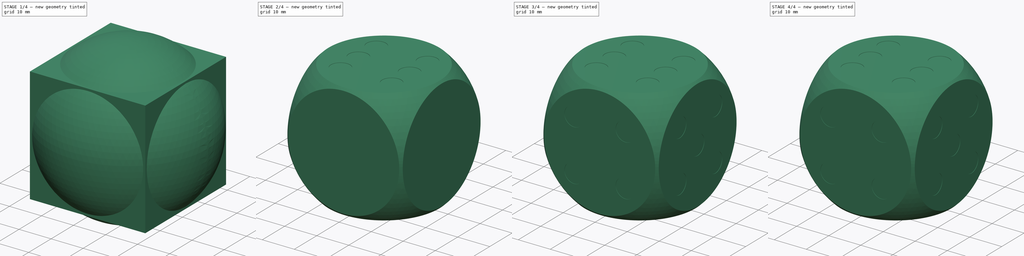
[diagram: build sequence overview — one tinted view per stage of 4, left to right]
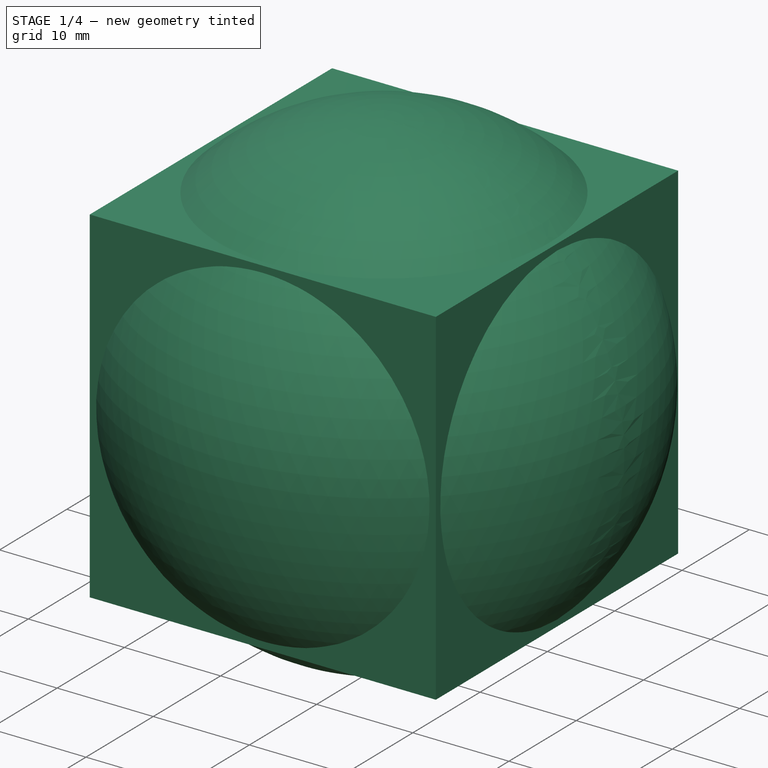
[diagram: stage 1 of 4 — iso view after this stage's code; geometry added in this stage tinted green]
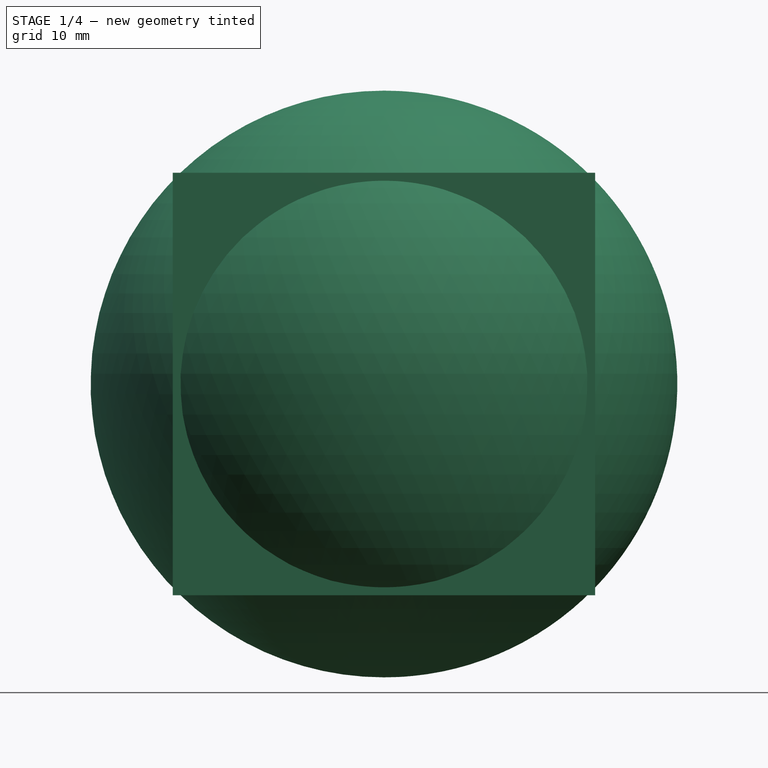
[diagram: stage 1 of 4 — front view after this stage's code; geometry added in this stage tinted green]
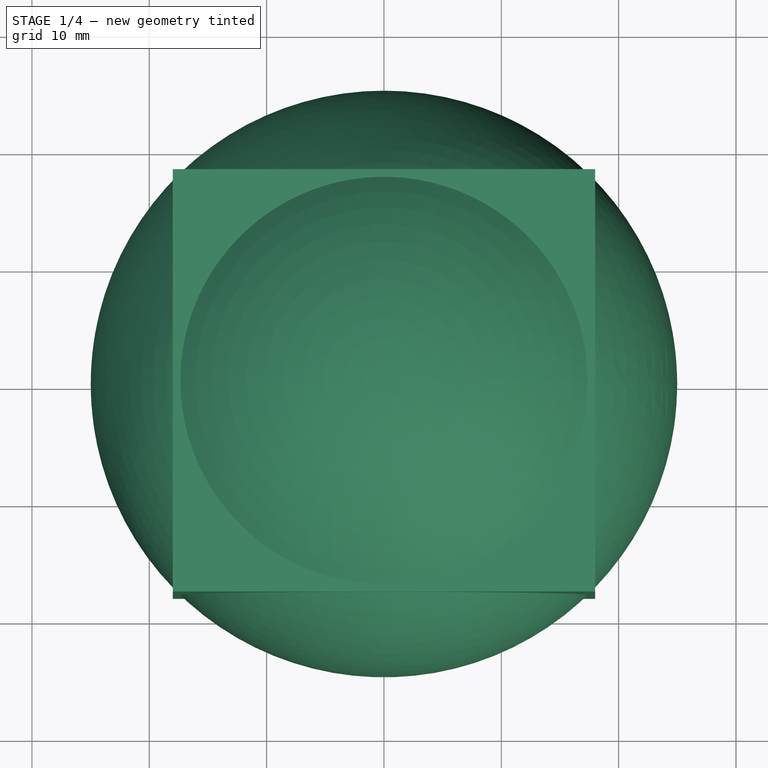
[diagram: stage 1 of 4 — top view after this stage's code; geometry added in this stage tinted green]
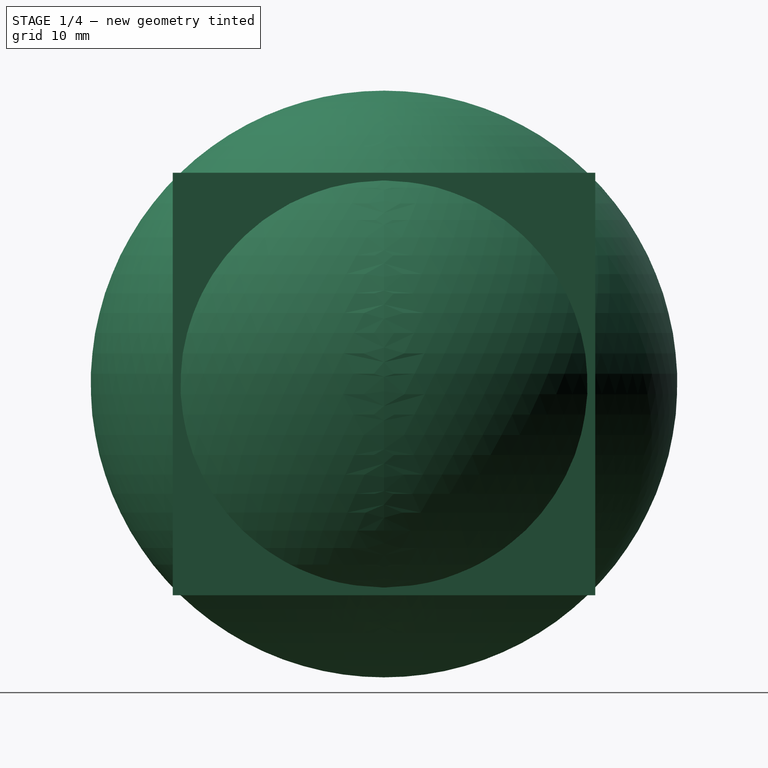
[diagram: stage 1 of 4 — right view after this stage's code; geometry added in this stage tinted green]
FCSTD DOCUMENT  (FreeCAD 0.18.3R)
Label: casino_dice
License: All rights reserved
LicenseURL: http://en.wikipedia.org/wiki/All_rights_reserved
objects: Sketcher::SketchObject×6, PartDesign::Pocket×6, Part::Box×1, Part::Sphere×1, Part::MultiCommon×1, PartDesign::FeatureBase×1, PartDesign::Body×1
note: 23 computed .brp shape members not serialized (recipe doc carries the construction recipe); baked Part::Feature solids carry a one-line shape summary decoded from their .brp

FEATURE [Part::Box] Box  label="Cube"
  AttacherType = Attacher::AttachEngine3D
  Height = 36
  Length = 36
  Placement = pos=(-18,-18,-18) rot=(0,0,1;0rad)
  Width = 36
FEATURE [Part::Sphere] Sphere
  Angle1 = -90
  Angle2 = 90
  Angle3 = 360
  AttacherType = Attacher::AttachEngine3D
  Radius = 25
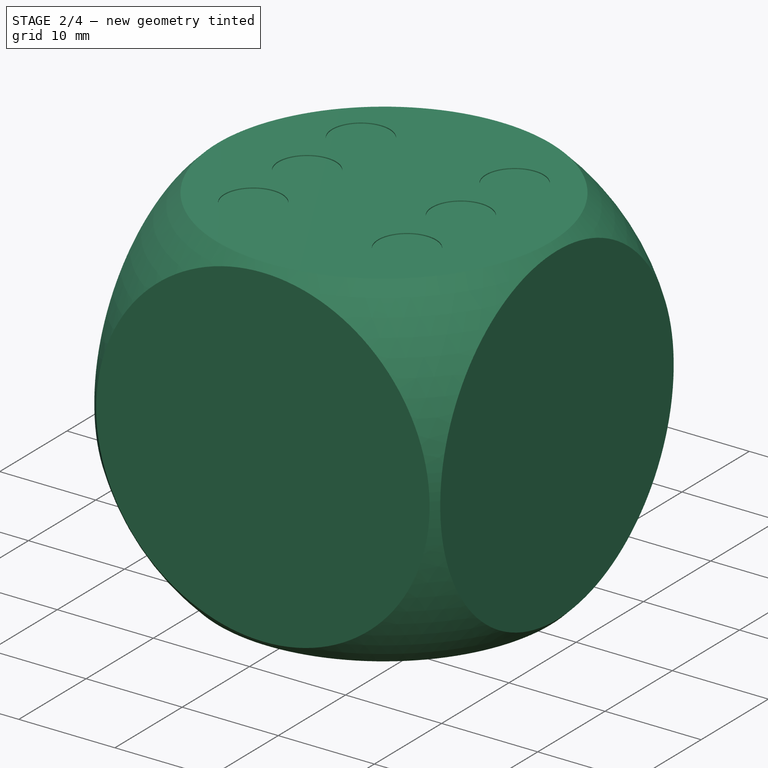
[diagram: stage 2 of 4 — iso view after this stage's code; geometry added in this stage tinted green]
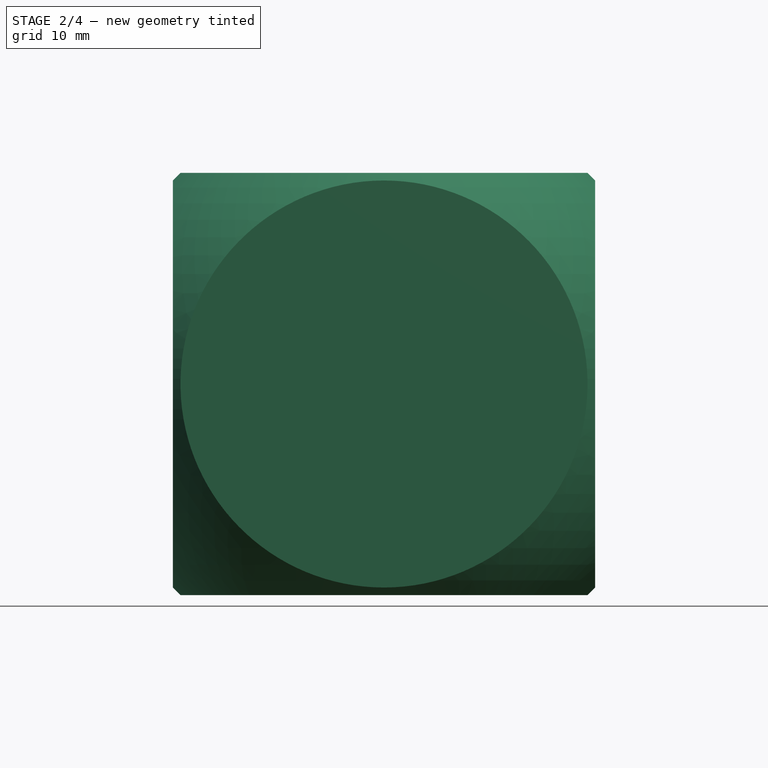
[diagram: stage 2 of 4 — front view after this stage's code; geometry added in this stage tinted green]
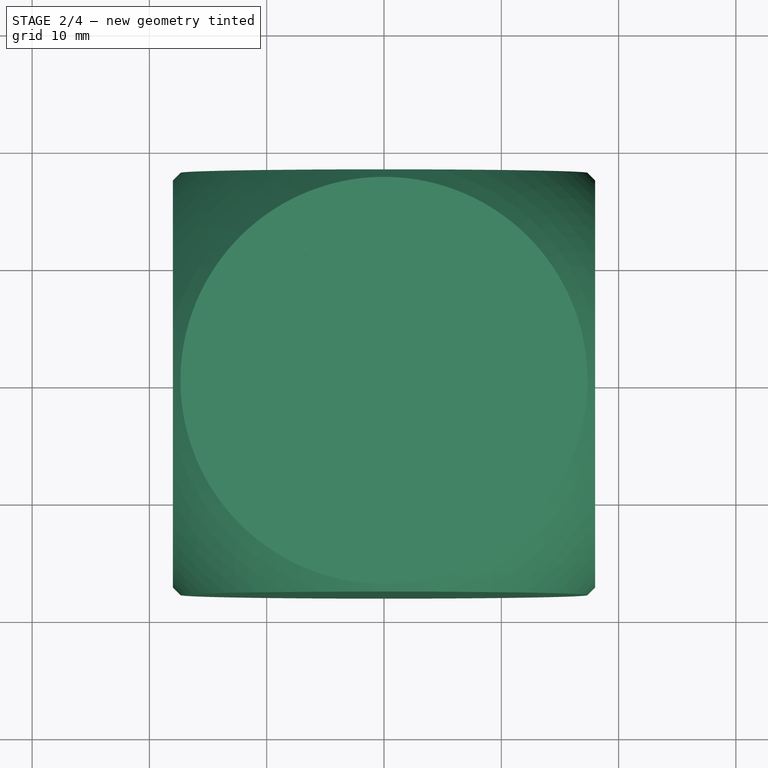
[diagram: stage 2 of 4 — top view after this stage's code; geometry added in this stage tinted green]
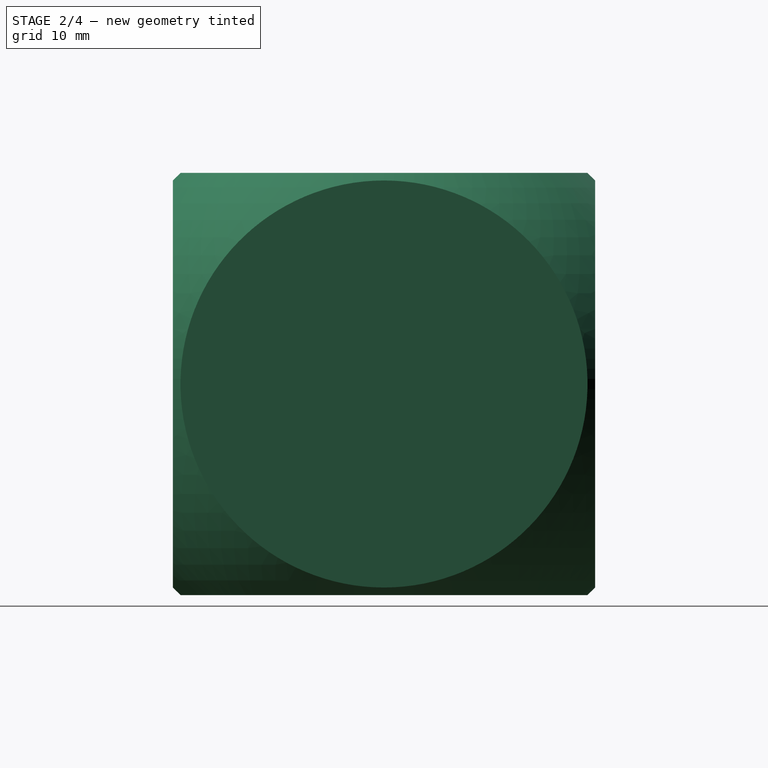
[diagram: stage 2 of 4 — right view after this stage's code; geometry added in this stage tinted green]
FEATURE [Part::MultiCommon] Common
  Shapes = -> [Box,Sphere]
FEATURE [PartDesign::FeatureBase] BaseFeature
  BaseFeature = -> Common
FEATURE [Sketcher::SketchObject] Sketch
  MapMode = 5
  Placement = pos=(0,0,18) rot=(0,0,1;0rad)
  Support = -> [BaseFeature]
  sketch-geometry (10):
    g0: LineSegment [constr] StartX=-8 StartY=8 StartZ=0 EndX=8 EndY=8 EndZ=0
    g1: LineSegment [constr] StartX=8 StartY=8 StartZ=0 EndX=8 EndY=-8 EndZ=0
    g2: LineSegment [constr] StartX=8 StartY=-8 StartZ=0 EndX=-8 EndY=-8 EndZ=0
    g3: LineSegment [constr] StartX=-8 StartY=-8 StartZ=0 EndX=-8 EndY=8 EndZ=0
    g4: Circle CenterX=-8 CenterY=8 CenterZ=0 NormalX=0 NormalY=0 NormalZ=1 AngleXU=0 Radius=3
    g5: Circle CenterX=8 CenterY=8 CenterZ=0 NormalX=0 NormalY=0 NormalZ=1 AngleXU=0 Radius=3
    g6: Circle CenterX=8 CenterY=-8 CenterZ=0 NormalX=0 NormalY=0 NormalZ=1 AngleXU=0 Radius=3
    g7: Circle CenterX=-8 CenterY=-8 CenterZ=0 NormalX=0 NormalY=0 NormalZ=1 AngleXU=0 Radius=3
    g8: Circle CenterX=-8 CenterY=6e-16 CenterZ=0 NormalX=0 NormalY=0 NormalZ=1 AngleXU=0 Radius=3
    g9: Circle CenterX=8 CenterY=-1e-16 CenterZ=0 NormalX=0 NormalY=0 NormalZ=1 AngleXU=0 Radius=3
  constraints (23):
    c: Coincident(g0,g1)
    c: Coincident(g1,g2)
    c: Coincident(g2,g3)
    c: Coincident(g3,g0)
    c: Horizontal(g0)
    c: Horizontal(g2)
    c: Vertical(g1)
    c: Vertical(g3)
    c: Symmetric(g0,g1,g-1)
    c: Equal(g0,g3)
    c: DistanceY(g3,g3) = 16
    c: Coincident(g4,g0)
    c: Coincident(g5,g0)
    c: Coincident(g6,g1)
    c: Coincident(g7,g2)
    c: Symmetric(g3,g3,g8)
    c: Symmetric(g1,g1,g9)
    c: Equal(g4,g8)
    c: Equal(g8,g7)
    c: Equal(g7,g6)
    c: Equal(g6,g9)
    c: Equal(g9,g5)
    c: Radius(g4) = 3
FEATURE [PartDesign::Pocket] Pocket  label="6 dots"
  BaseFeature = -> BaseFeature
  Length = 0.1
  Length2 = 100
  Profile = -> Sketch
  Refine = true
  Type = 0
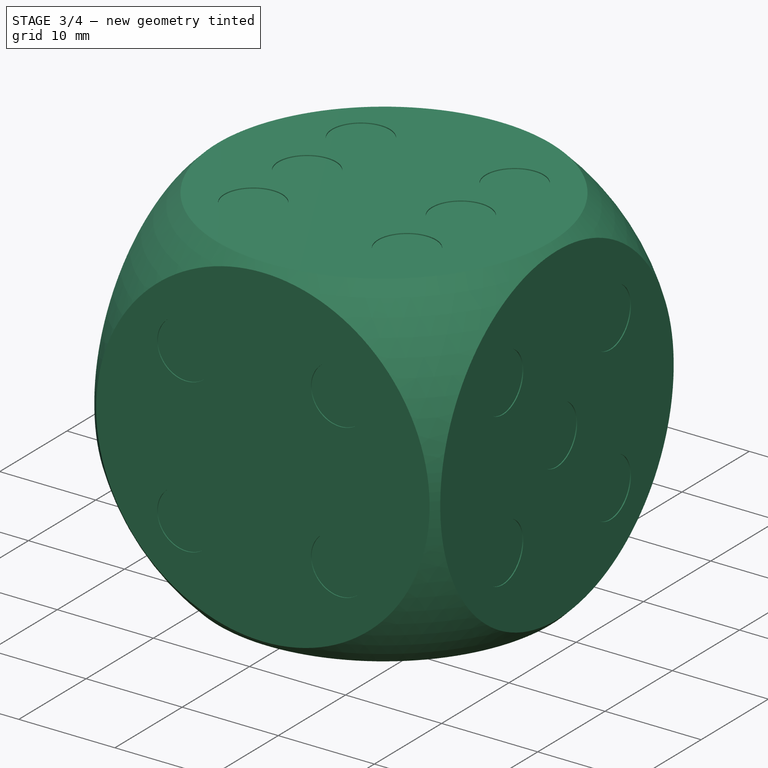
[diagram: stage 3 of 4 — iso view after this stage's code; geometry added in this stage tinted green]
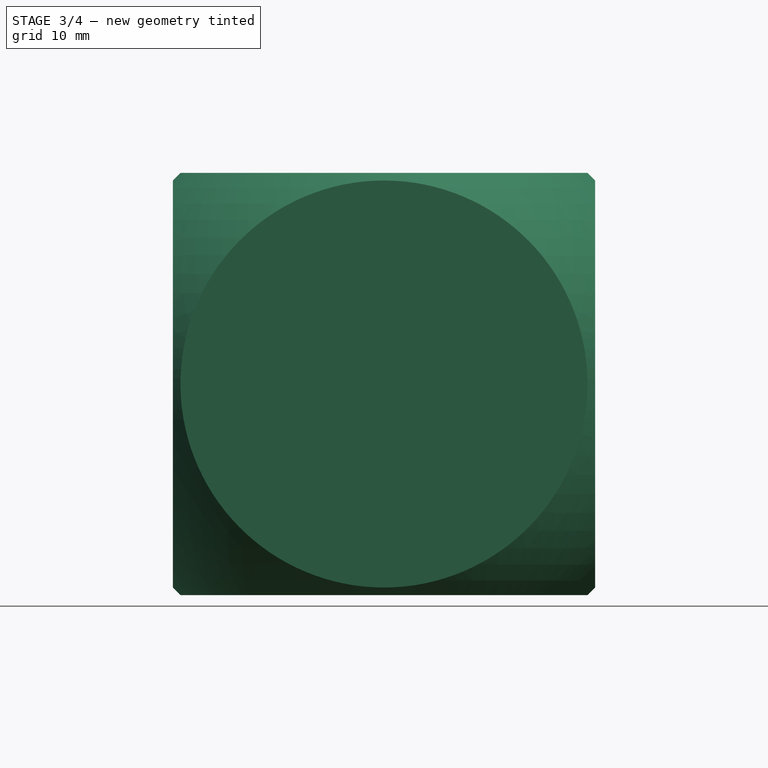
[diagram: stage 3 of 4 — front view after this stage's code; geometry added in this stage tinted green]
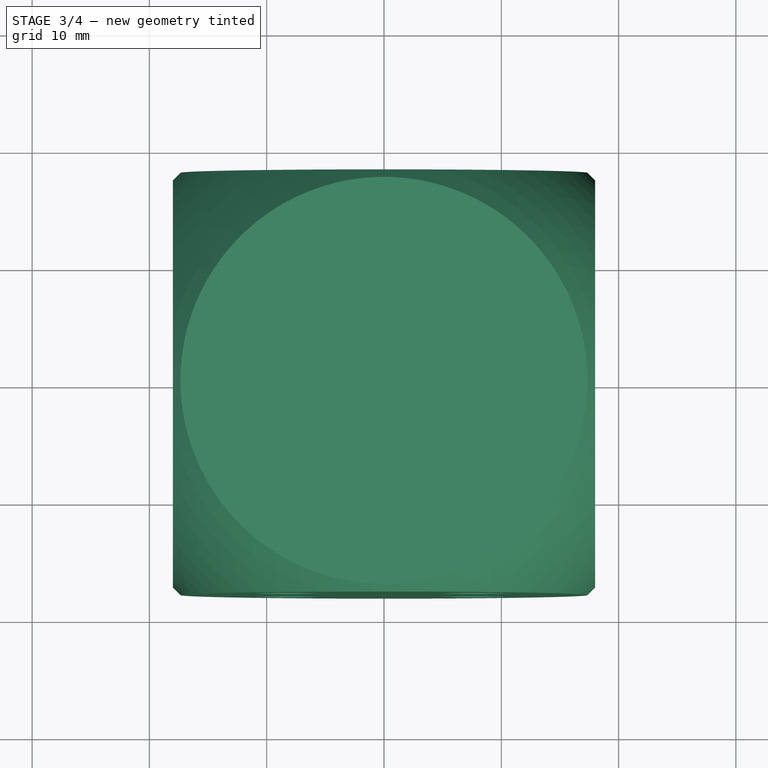
[diagram: stage 3 of 4 — top view after this stage's code; geometry added in this stage tinted green]
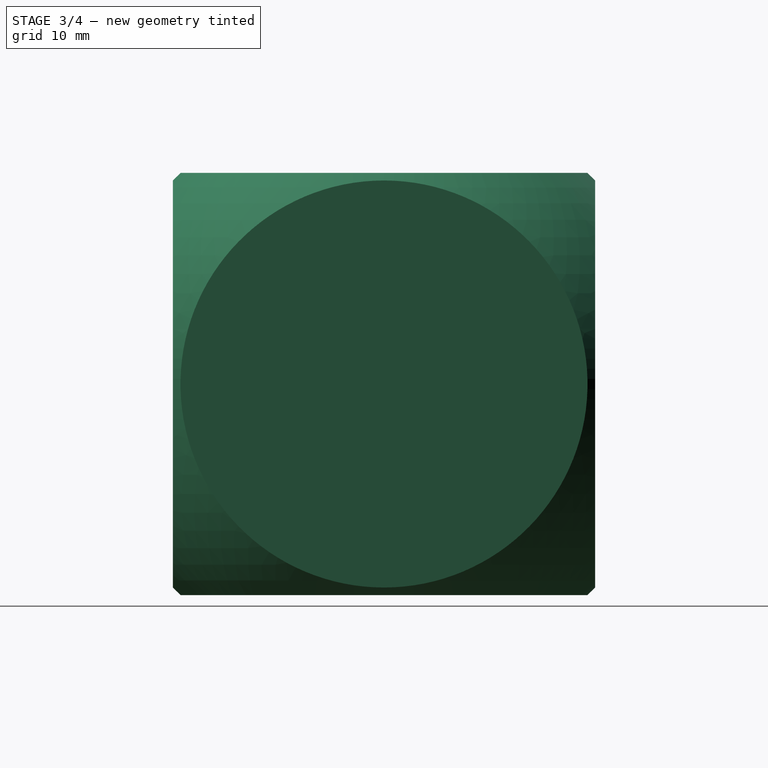
[diagram: stage 3 of 4 — right view after this stage's code; geometry added in this stage tinted green]
FEATURE [Sketcher::SketchObject] Sketch001
  MapMode = 5
  Placement = pos=(18,0,0) rot=(0.57735,0.57735,0.57735;2.0944rad)
  Support = -> [Pocket]
  sketch-geometry (9):
    g0: LineSegment [constr] StartX=-8 StartY=8 StartZ=0 EndX=8 EndY=8 EndZ=0
    g1: LineSegment [constr] StartX=8 StartY=8 StartZ=0 EndX=8 EndY=-8 EndZ=0
    g2: LineSegment [constr] StartX=8 StartY=-8 StartZ=0 EndX=-8 EndY=-8 EndZ=0
    g3: LineSegment [constr] StartX=-8 StartY=-8 StartZ=0 EndX=-8 EndY=8 EndZ=0
    g4: Circle CenterX=-8 CenterY=8 CenterZ=0 NormalX=0 NormalY=0 NormalZ=1 AngleXU=0 Radius=3
    g5: Circle CenterX=8 CenterY=8 CenterZ=0 NormalX=0 NormalY=0 NormalZ=1 AngleXU=0 Radius=3
    g6: Circle CenterX=0 CenterY=0 CenterZ=0 NormalX=0 NormalY=0 NormalZ=1 AngleXU=0 Radius=3
    g7: Circle CenterX=-8 CenterY=-8 CenterZ=0 NormalX=0 NormalY=0 NormalZ=1 AngleXU=0 Radius=3
    g8: Circle CenterX=8 CenterY=-8 CenterZ=0 NormalX=0 NormalY=0 NormalZ=1 AngleXU=0 Radius=3
  constraints (21):
    c: Coincident(g0,g1)
    c: Coincident(g1,g2)
    c: Coincident(g2,g3)
    c: Coincident(g3,g0)
    c: Horizontal(g0)
    c: Horizontal(g2)
    c: Vertical(g1)
    c: Vertical(g3)
    c: Symmetric(g0,g1,g-1)
    c: Equal(g0,g3)
    c: DistanceY(g3,g3) = 16
    c: Coincident(g4,g0)
    c: Coincident(g5,g0)
    c: Coincident(g6,g-1)
    c: Coincident(g7,g2)
    c: Coincident(g8,g1)
    c: Equal(g4,g7)
    c: Equal(g7,g6)
    c: Equal(g6,g8)
    c: Equal(g8,g5)
    c: Radius(g4) = 3
FEATURE [PartDesign::Pocket] Pocket001  label="5 dots"
  BaseFeature = -> Pocket
  Length = 0.1
  Length2 = 100
  Profile = -> Sketch001
  Refine = true
  Type = 0
FEATURE [Sketcher::SketchObject] Sketch002
  MapMode = 5
  Placement = pos=(0,-18,0) rot=(1,0,0;1.5708rad)
  Support = -> [Pocket001]
  sketch-geometry (8):
    g0: LineSegment [constr] StartX=-8 StartY=8 StartZ=0 EndX=8 EndY=8 EndZ=0
    g1: LineSegment [constr] StartX=8 StartY=8 StartZ=0 EndX=8 EndY=-8 EndZ=0
    g2: LineSegment [constr] StartX=8 StartY=-8 StartZ=0 EndX=-8 EndY=-8 EndZ=0
    g3: LineSegment [constr] StartX=-8 StartY=-8 StartZ=0 EndX=-8 EndY=8 EndZ=0
    g4: Circle CenterX=-8 CenterY=8 CenterZ=0 NormalX=0 NormalY=0 NormalZ=1 AngleXU=0 Radius=3
    g5: Circle CenterX=8 CenterY=8 CenterZ=0 NormalX=0 NormalY=0 NormalZ=1 AngleXU=0 Radius=3
    g6: Circle CenterX=-8 CenterY=-8 CenterZ=0 NormalX=0 NormalY=0 NormalZ=1 AngleXU=0 Radius=3
    g7: Circle CenterX=8 CenterY=-8 CenterZ=0 NormalX=0 NormalY=0 NormalZ=1 AngleXU=0 Radius=3
  constraints (19):
    c: Coincident(g0,g1)
    c: Coincident(g1,g2)
    c: Coincident(g2,g3)
    c: Coincident(g3,g0)
    c: Horizontal(g0)
    c: Horizontal(g2)
    c: Vertical(g1)
    c: Vertical(g3)
    c: Symmetric(g0,g1,g-1)
    c: Equal(g0,g3)
    c: DistanceY(g3,g3) = 16
    c: Coincident(g4,g0)
    c: Coincident(g5,g0)
    c: Coincident(g6,g2)
    c: Coincident(g7,g1)
    c: Equal(g4,g6)
    c: Equal(g6,g7)
    c: Equal(g7,g5)
    c: Radius(g4) = 3
FEATURE [PartDesign::Pocket] Pocket002  label="4 dots"
  BaseFeature = -> Pocket001
  Length = 0.1
  Length2 = 100
  Profile = -> Sketch002
  Refine = true
  Type = 0
FEATURE [Sketcher::SketchObject] Sketch003
  MapMode = 5
  Placement = pos=(0,18,0) rot=(0,0.707107,0.707107;3.14159rad)
  Support = -> [Pocket002]
  sketch-geometry (7):
    g0: LineSegment [constr] StartX=-8 StartY=8 StartZ=0 EndX=8 EndY=8 EndZ=0
    g1: LineSegment [constr] StartX=8 StartY=8 StartZ=0 EndX=8 EndY=-8 EndZ=0
    g2: LineSegment [constr] StartX=8 StartY=-8 StartZ=0 EndX=-8 EndY=-8 EndZ=0
    g3: LineSegment [constr] StartX=-8 StartY=-8 StartZ=0 EndX=-8 EndY=8 EndZ=0
    g4: Circle CenterX=8 CenterY=8 CenterZ=0 NormalX=0 NormalY=0 NormalZ=1 AngleXU=0 Radius=3
    g5: Circle CenterX=0 CenterY=0 CenterZ=0 NormalX=0 NormalY=0 NormalZ=1 AngleXU=0 Radius=3
    g6: Circle CenterX=-8 CenterY=-8 CenterZ=0 NormalX=0 NormalY=0 NormalZ=1 AngleXU=0 Radius=3
  constraints (17):
    c: Coincident(g0,g1)
    c: Coincident(g1,g2)
    c: Coincident(g2,g3)
    c: Coincident(g3,g0)
    c: Horizontal(g0)
    c: Horizontal(g2)
    c: Vertical(g1)
    c: Vertical(g3)
    c: Symmetric(g0,g1,g-1)
    c: Equal(g0,g3)
    c: DistanceY(g3,g3) = 16
    c: Coincident(g4,g0)
    c: Coincident(g5,g-1)
    c: Coincident(g6,g2)
    c: Equal(g6,g5)
    c: Equal(g5,g4)
    c: Radius(g4) = 3
FEATURE [PartDesign::Pocket] Pocket003  label="3 dots"
  BaseFeature = -> Pocket002
  Length = 0.1
  Length2 = 100
  Profile = -> Sketch003
  Refine = true
  Type = 0
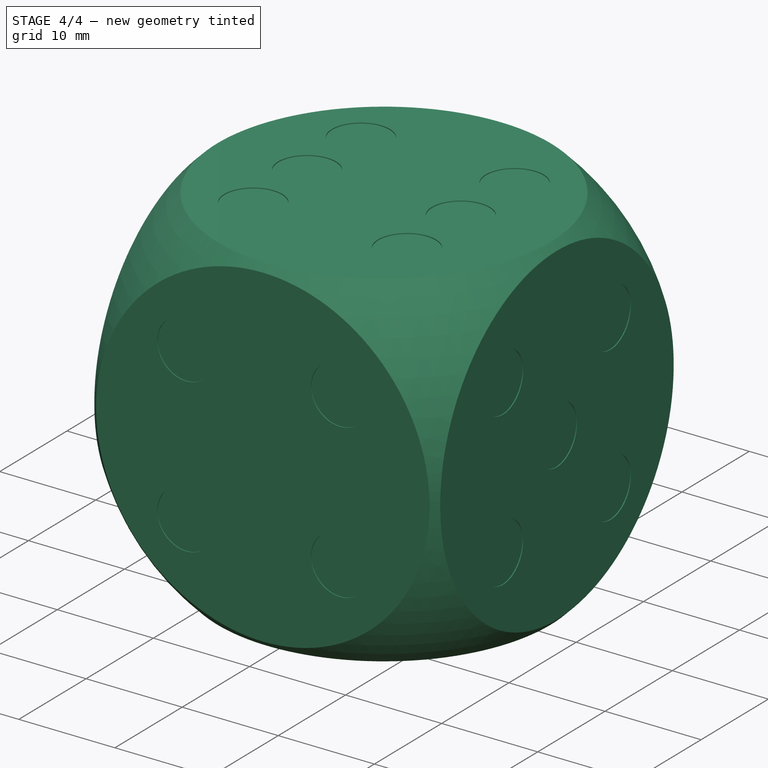
[diagram: stage 4 of 4 — iso view after this stage's code; geometry added in this stage tinted green]
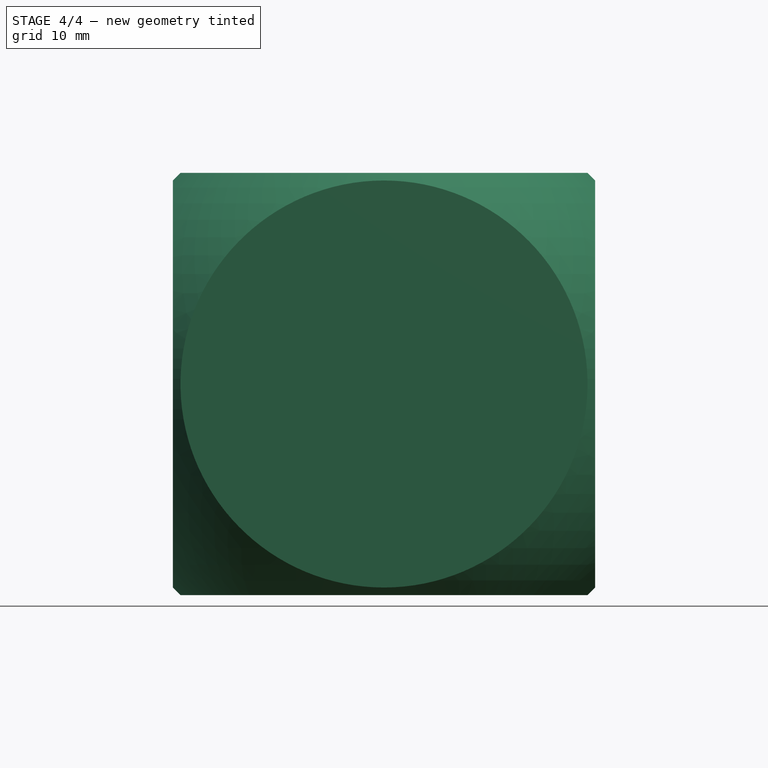
[diagram: stage 4 of 4 — front view after this stage's code; geometry added in this stage tinted green]
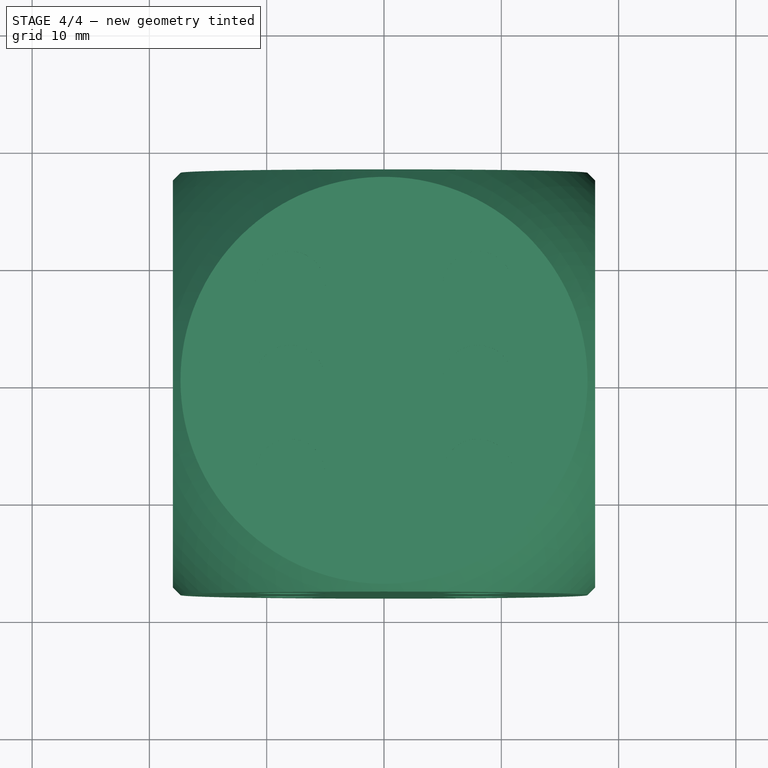
[diagram: stage 4 of 4 — top view after this stage's code; geometry added in this stage tinted green]
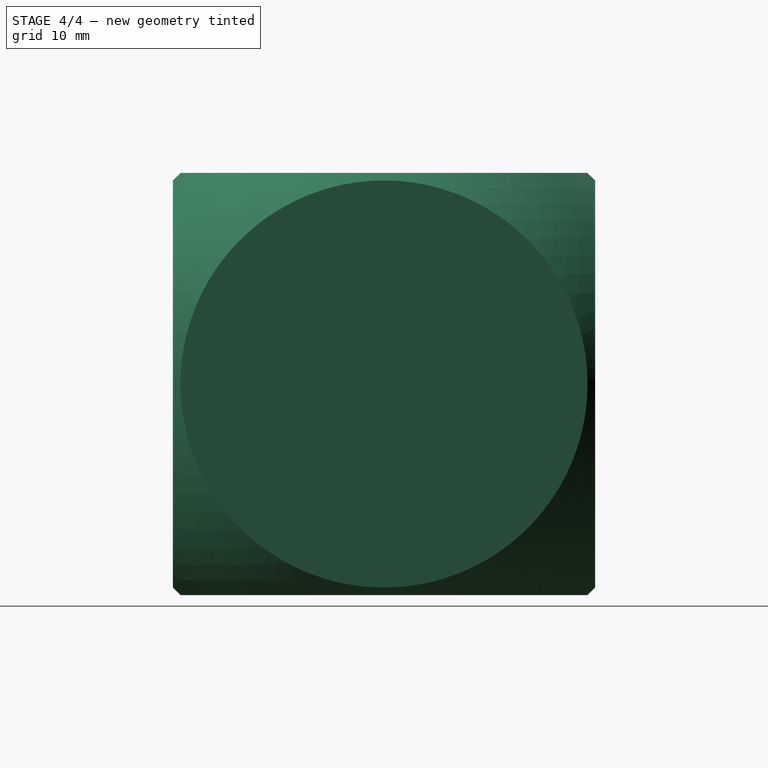
[diagram: stage 4 of 4 — right view after this stage's code; geometry added in this stage tinted green]
FEATURE [Sketcher::SketchObject] Sketch004
  MapMode = 5
  Placement = pos=(-18,0,0) rot=(0.57735,-0.57735,-0.57735;2.0944rad)
  Support = -> [Pocket003]
  sketch-geometry (6):
    g0: LineSegment [constr] StartX=-8 StartY=8 StartZ=0 EndX=8 EndY=8 EndZ=0
    g1: LineSegment [constr] StartX=8 StartY=8 StartZ=0 EndX=8 EndY=-8 EndZ=0
    g2: LineSegment [constr] StartX=8 StartY=-8 StartZ=0 EndX=-8 EndY=-8 EndZ=0
    g3: LineSegment [constr] StartX=-8 StartY=-8 StartZ=0 EndX=-8 EndY=8 EndZ=0
    g4: Circle CenterX=8 CenterY=8 CenterZ=0 NormalX=0 NormalY=0 NormalZ=1 AngleXU=0 Radius=3
    g5: Circle CenterX=-8 CenterY=-8 CenterZ=0 NormalX=0 NormalY=0 NormalZ=1 AngleXU=0 Radius=3
  constraints (15):
    c: Coincident(g0,g1)
    c: Coincident(g1,g2)
    c: Coincident(g2,g3)
    c: Coincident(g3,g0)
    c: Horizontal(g0)
    c: Horizontal(g2)
    c: Vertical(g1)
    c: Vertical(g3)
    c: Symmetric(g0,g1,g-1)
    c: Equal(g3,g0)
    c: DistanceY(g3,g3) = 16
    c: Coincident(g4,g0)
    c: Coincident(g5,g2)
    c: Equal(g5,g4)
    c: Radius(g4) = 3
FEATURE [PartDesign::Pocket] Pocket004  label="2 dots"
  BaseFeature = -> Pocket003
  Length = 0.1
  Length2 = 100
  Profile = -> Sketch004
  Refine = true
  Type = 0
FEATURE [Sketcher::SketchObject] Sketch005
  MapMode = 5
  Placement = pos=(0,0,-18) rot=(1,0,0;3.14159rad)
  Support = -> [Pocket004]
  sketch-geometry (5):
    g0: LineSegment [constr] StartX=-8 StartY=8 StartZ=0 EndX=8 EndY=8 EndZ=0
    g1: LineSegment [constr] StartX=8 StartY=8 StartZ=0 EndX=8 EndY=-8 EndZ=0
    g2: LineSegment [constr] StartX=8 StartY=-8 StartZ=0 EndX=-8 EndY=-8 EndZ=0
    g3: LineSegment [constr] StartX=-8 StartY=-8 StartZ=0 EndX=-8 EndY=8 EndZ=0
    g4: Circle CenterX=0 CenterY=0 CenterZ=0 NormalX=0 NormalY=0 NormalZ=1 AngleXU=0 Radius=3
  constraints (13):
    c: Coincident(g0,g1)
    c: Coincident(g1,g2)
    c: Coincident(g2,g3)
    c: Coincident(g3,g0)
    c: Horizontal(g0)
    c: Horizontal(g2)
    c: Vertical(g1)
    c: Vertical(g3)
    c: Symmetric(g0,g1,g-1)
    c: Equal(g0,g3)
    c: DistanceY(g3,g3) = 16
    c: Coincident(g4,g-1)
    c: Radius(g4) = 3
FEATURE [PartDesign::Pocket] Pocket005  label="1 dot"
  BaseFeature = -> Pocket004
  Length = 0.1
  Length2 = 100
  Profile = -> Sketch005
  Refine = true
  Type = 0
FEATURE [PartDesign::Body] Body
  BaseFeature = -> Common
  Group = -> [BaseFeature,Sketch,Pocket,Sketch001,Pocket001,Sketch002,Pocket002,Sketch003,Pocket003,Sketch004,Pocket004,Sketch005,Pocket005]
  Origin = -> Origin
  Tip = -> Pocket005
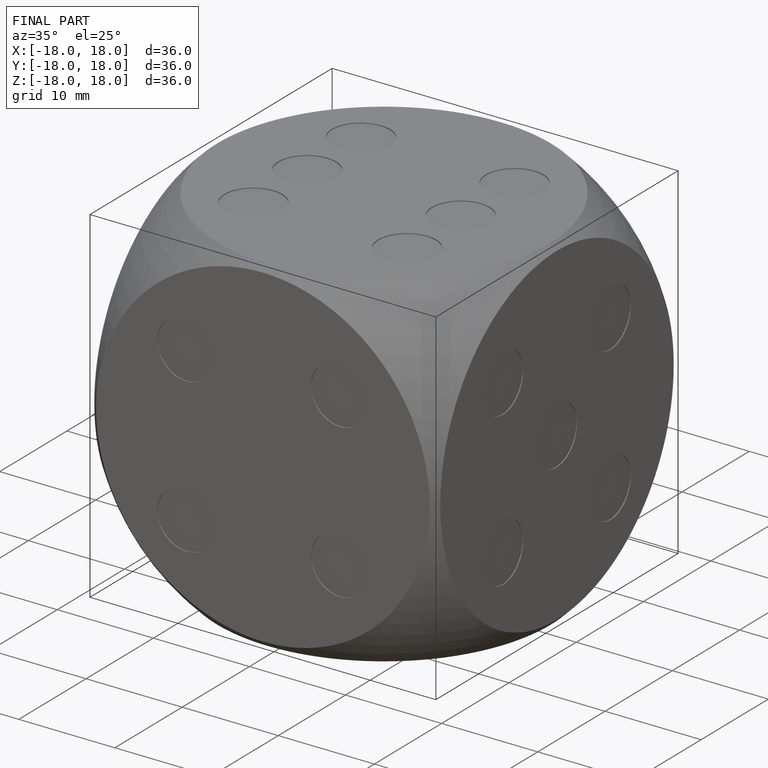
[diagram: finished part — iso view with bounding-box wireframe]
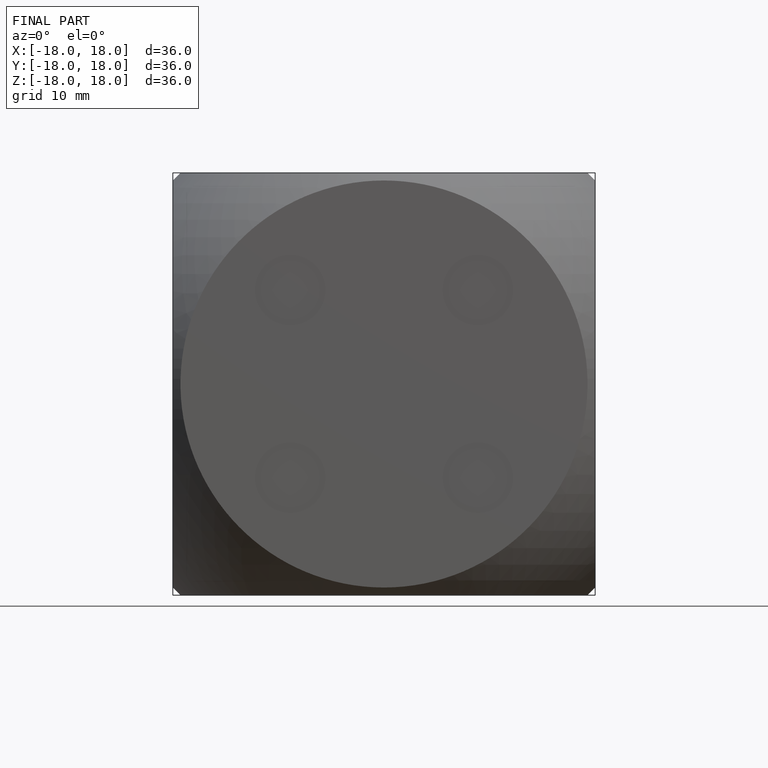
[diagram: finished part — front view with bounding-box wireframe]
